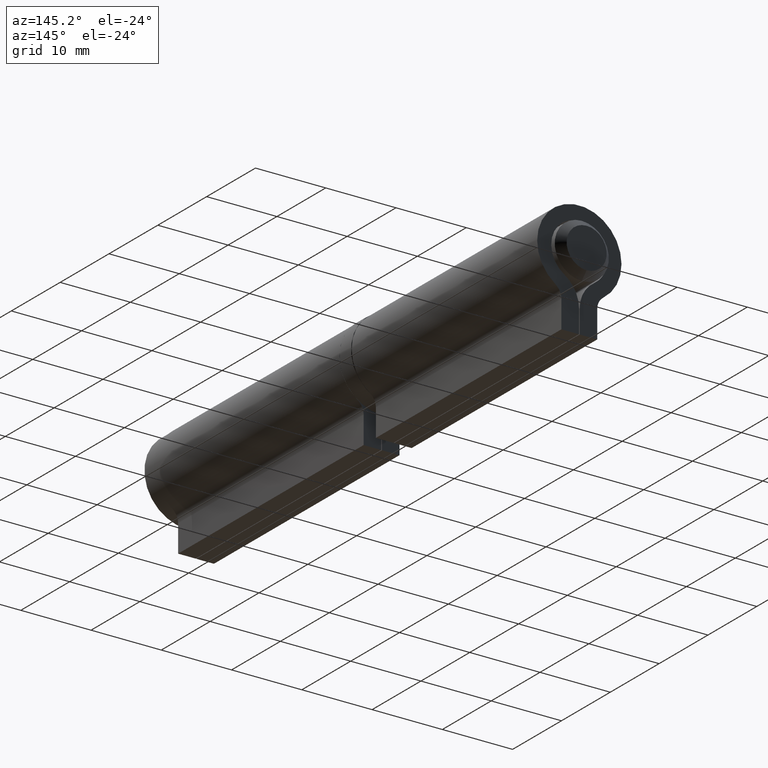
[diagram: clean part render]
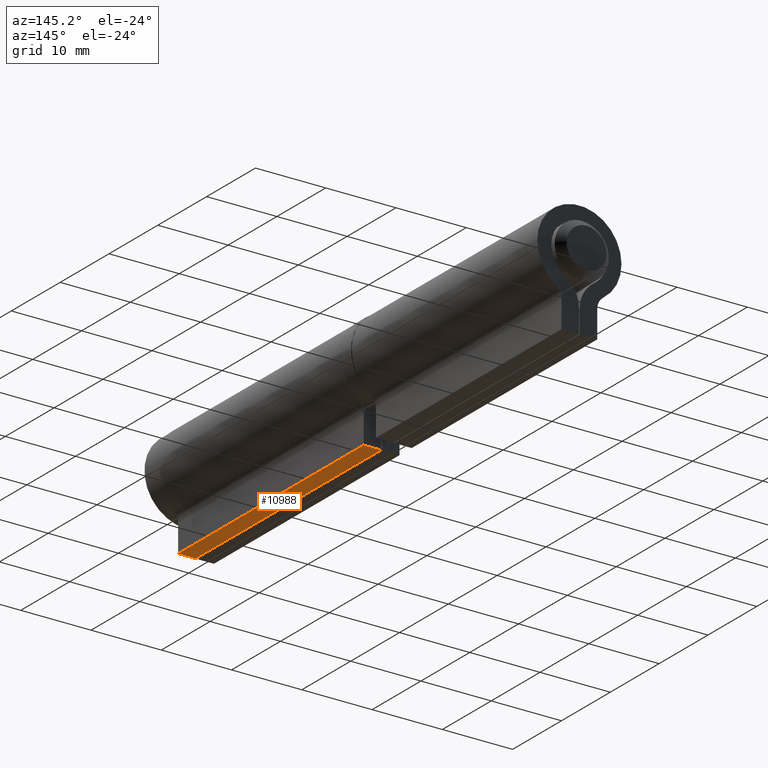
[diagram: same view with one face highlighted and labeled with its STEP entity id]
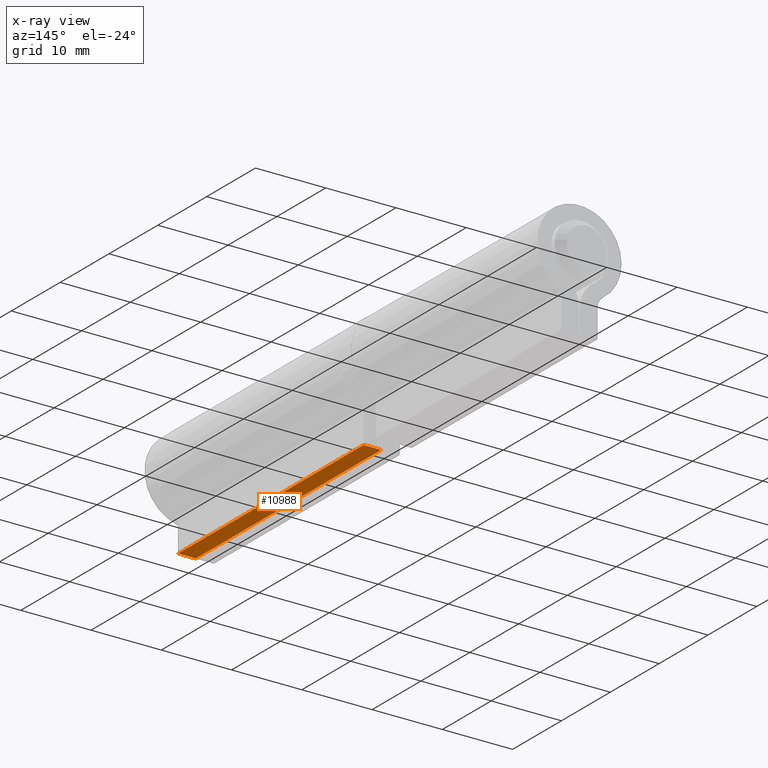
[diagram: x-ray of the same camera — body ghosted, the highlighted face saturated]
A machine part, auxiliary view. The second image highlights one B-rep face of the part: STEP entity #10988.
The next image is the same camera in x-ray: the body ghosted, the highlighted face saturated — about 0% of this face is hidden behind the body in this view.
In plain terms, the highlighted planar face has unit normal (0, 0, 1).
Its self-contained STEP definition (entity closure, byte-faithful):
#235 = EDGE_CURVE ( 'NONE', #11334, #3877, #11901, .T. ) ;
#558 = LINE ( 'NONE', #13130, #15065 ) ;
#792 = ORIENTED_EDGE ( 'NONE', *, *, #8644, .F. ) ;
#1668 = LINE ( 'NONE', #5895, #10125 ) ;
#1929 = LINE ( 'NONE', #15125, #4510 ) ;
#2405 = DIRECTION ( 'NONE',  ( -1.000000000000000000, 0.000000000000000000, 0.000000000000000000 ) ) ;
#3197 = CARTESIAN_POINT ( 'NONE',  ( 2.549999999999999822, 19.00000000000000000, -10.50000000000000000 ) ) ;
#3612 = AXIS2_PLACEMENT_3D ( 'NONE', #13079, #5898, #9602 ) ;
#3824 = EDGE_CURVE ( 'NONE', #9935, #11334, #1929, .T. ) ;
#3877 = VERTEX_POINT ( 'NONE', #12602 ) ;
#4256 = ORIENTED_EDGE ( 'NONE', *, *, #235, .T. ) ;
#4345 = FACE_OUTER_BOUND ( 'NONE', #14822, .T. ) ;
#4510 = VECTOR ( 'NONE', #8123, 1000.000000000000000 ) ;
#4880 = PLANE ( 'NONE',  #3612 ) ;
#5519 = CARTESIAN_POINT ( 'NONE',  ( 2.549999999999999822, -19.00000000000000355, -10.50000000000000000 ) ) ;
#5895 = CARTESIAN_POINT ( 'NONE',  ( 2.549999999999999822, 19.00000000000000000, -10.50000000000000000 ) ) ;
#5898 = DIRECTION ( 'NONE',  ( 0.000000000000000000, -0.000000000000000000, 1.000000000000000000 ) ) ;
#6110 = DIRECTION ( 'NONE',  ( -0.000000000000000000, -1.000000000000000000, -0.000000000000000000 ) ) ;
#8123 = DIRECTION ( 'NONE',  ( -0.000000000000000000, -1.000000000000000000, -0.000000000000000000 ) ) ;
#8430 = EDGE_CURVE ( 'NONE', #9935, #13454, #1668, .T. ) ;
#8644 = EDGE_CURVE ( 'NONE', #13454, #3877, #558, .T. ) ;
#9602 = DIRECTION ( 'NONE',  ( 1.000000000000000000, 0.000000000000000000, -0.000000000000000000 ) ) ;
#9884 = VECTOR ( 'NONE', #12873, 1000.000000000000000 ) ;
#9935 = VERTEX_POINT ( 'NONE', #3197 ) ;
#10048 = ORIENTED_EDGE ( 'NONE', *, *, #3824, .T. ) ;
#10125 = VECTOR ( 'NONE', #2405, 1000.000000000000000 ) ;
#10988 = ADVANCED_FACE ( 'NONE', ( #4345 ), #4880, .F. ) ;
#11212 = CARTESIAN_POINT ( 'NONE',  ( 2.549999999999999822, -19.00000000000000355, -10.50000000000000000 ) ) ;
#11334 = VERTEX_POINT ( 'NONE', #11212 ) ;
#11811 = CARTESIAN_POINT ( 'NONE',  ( 0.04999999999999963501, 19.00000000000000000, -10.50000000000000000 ) ) ;
#11901 = LINE ( 'NONE', #5519, #9884 ) ;
#12602 = CARTESIAN_POINT ( 'NONE',  ( 0.04999999999999963501, -19.00000000000000355, -10.50000000000000000 ) ) ;
#12873 = DIRECTION ( 'NONE',  ( -1.000000000000000000, 0.000000000000000000, 0.000000000000000000 ) ) ;
#13079 = CARTESIAN_POINT ( 'NONE',  ( 2.549999999999999822, 19.00000000000000000, -10.50000000000000000 ) ) ;
#13130 = CARTESIAN_POINT ( 'NONE',  ( 0.04999999999999963501, 19.00000000000000000, -10.50000000000000000 ) ) ;
#13454 = VERTEX_POINT ( 'NONE', #11811 ) ;
#14150 = ORIENTED_EDGE ( 'NONE', *, *, #8430, .F. ) ;
#14822 = EDGE_LOOP ( 'NONE', ( #4256, #792, #14150, #10048 ) ) ;
#15065 = VECTOR ( 'NONE', #6110, 1000.000000000000000 ) ;
#15125 = CARTESIAN_POINT ( 'NONE',  ( 2.549999999999999822, 19.00000000000000000, -10.50000000000000000 ) ) ;